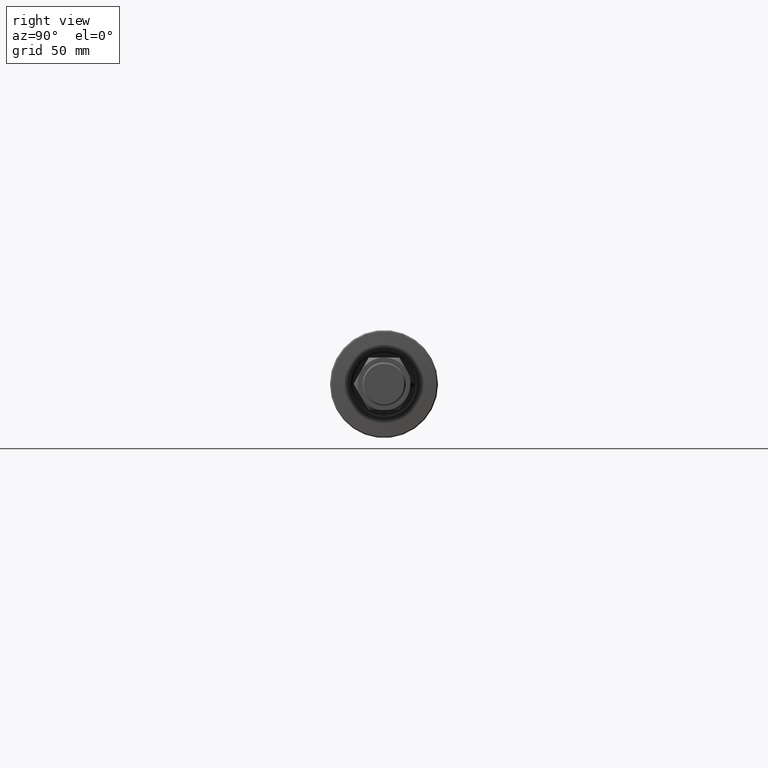
[diagram: clean part render]
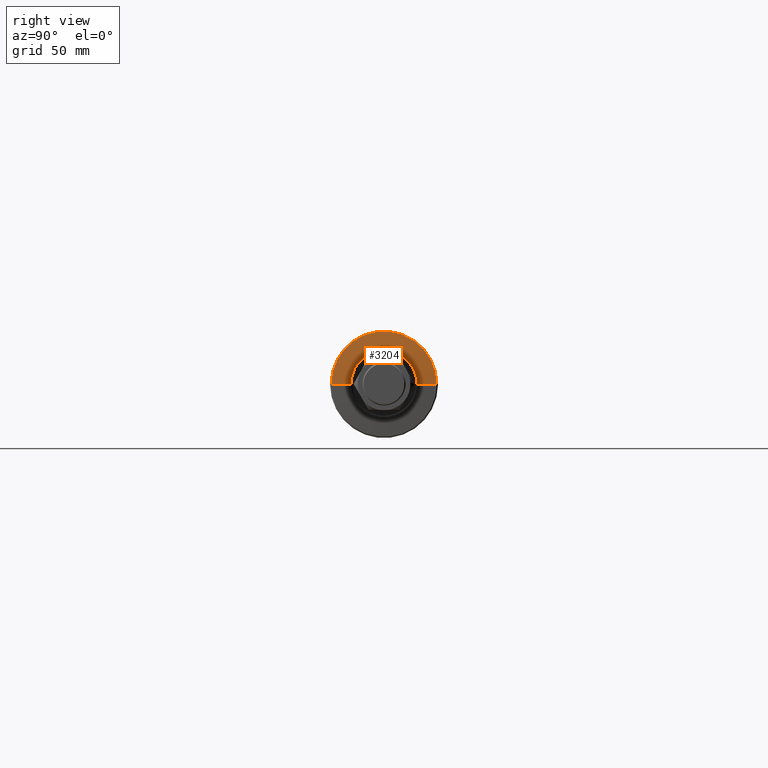
[diagram: same view with one face highlighted and labeled with its STEP entity id]
A machine part, right view. The second image highlights one B-rep face of the part: STEP entity #3204.
In plain terms, the highlighted conical surface has half-angle 87.138 deg.
Its self-contained STEP definition (entity closure, byte-faithful):
#46 = DIRECTION ( 'NONE',  ( -3.035766082959404132E-15, 1.000000000000000000, 0.000000000000000000 ) ) ;
#72 = ORIENTED_EDGE ( 'NONE', *, *, #3797, .T. ) ;
#234 = CARTESIAN_POINT ( 'NONE',  ( -0.6874688084724417392, 13.74937616943901908, 2.189017954870906259E-15 ) ) ;
#337 = CARTESIAN_POINT ( 'NONE',  ( -1.100000000000799227, 22.00000000000015277, 2.694222958124184698E-15 ) ) ;
#396 = DIRECTION ( 'NONE',  ( -3.035903820383676297E-15, 1.000000000000000000, 0.000000000000000000 ) ) ;
#433 = CARTESIAN_POINT ( 'NONE',  ( -1.100000000000665556, -21.99999999999997158, 0.000000000000000000 ) ) ;
#449 = AXIS2_PLACEMENT_3D ( 'NONE', #2101, #796, #2400 ) ;
#558 = VECTOR ( 'NONE', #1634, 1000.000000000000000 ) ;
#717 = VERTEX_POINT ( 'NONE', #234 ) ;
#796 = DIRECTION ( 'NONE',  ( -1.000000000000000000, -3.039592211588219332E-15, 0.000000000000000000 ) ) ;
#868 = EDGE_CURVE ( 'NONE', #3439, #717, #1158, .T. ) ;
#1068 = CARTESIAN_POINT ( 'NONE',  ( -0.6874688084723582504, -13.74937616943883789, 0.000000000000000000 ) ) ;
#1158 = CIRCLE ( 'NONE', #3512, 13.74937616943892849 ) ;
#1233 = CARTESIAN_POINT ( 'NONE',  ( -1.100000000000799227, 22.00000000000015277, 2.724839128102870063E-15 ) ) ;
#1244 = LINE ( 'NONE', #2201, #3647 ) ;
#1255 = EDGE_CURVE ( 'NONE', #3439, #2551, #1244, .T. ) ;
#1382 = DIRECTION ( 'NONE',  ( -1.000000000000000000, -3.039592211588226037E-15, 0.000000000000000000 ) ) ;
#1634 = DIRECTION ( 'NONE',  ( -0.04993761694392855749, 0.9987523388778428712, 1.223118854947682994E-16 ) ) ;
#1870 = VERTEX_POINT ( 'NONE', #1233 ) ;
#2101 = CARTESIAN_POINT ( 'NONE',  ( -1.100000000000732392, 8.869536993631697946E-14, 0.000000000000000000 ) ) ;
#2153 = EDGE_CURVE ( 'NONE', #717, #1870, #3187, .T. ) ;
#2201 = CARTESIAN_POINT ( 'NONE',  ( -1.100000000000665556, -21.99999999999997158, 0.000000000000000000 ) ) ;
#2366 = FACE_OUTER_BOUND ( 'NONE', #2590, .T. ) ;
#2400 = DIRECTION ( 'NONE',  ( 3.035766082959404132E-15, -1.000000000000000000, 0.000000000000000000 ) ) ;
#2496 = ORIENTED_EDGE ( 'NONE', *, *, #1255, .F. ) ;
#2551 = VERTEX_POINT ( 'NONE', #433 ) ;
#2590 = EDGE_LOOP ( 'NONE', ( #3190, #2761, #72, #2496 ) ) ;
#2624 = AXIS2_PLACEMENT_3D ( 'NONE', #2919, #3194, #46 ) ;
#2761 = ORIENTED_EDGE ( 'NONE', *, *, #2153, .T. ) ;
#2919 = CARTESIAN_POINT ( 'NONE',  ( -1.100000000000732392, 8.869536993631697946E-14, 0.000000000000000000 ) ) ;
#2984 = CARTESIAN_POINT ( 'NONE',  ( -0.6874688084723999948, 8.994929653312370924E-14, 0.000000000000000000 ) ) ;
#3083 = CONICAL_SURFACE ( 'NONE', #449, 22.00000000000006040, 1.520837931072920535 ) ;
#3187 = LINE ( 'NONE', #337, #558 ) ;
#3190 = ORIENTED_EDGE ( 'NONE', *, *, #868, .T. ) ;
#3194 = DIRECTION ( 'NONE',  ( 1.000000000000000000, 3.039592211588219332E-15, -0.000000000000000000 ) ) ;
#3204 = ADVANCED_FACE ( 'NONE', ( #2366 ), #3083, .T. ) ;
#3228 = CIRCLE ( 'NONE', #2624, 22.00000000000006040 ) ;
#3439 = VERTEX_POINT ( 'NONE', #1068 ) ;
#3446 = DIRECTION ( 'NONE',  ( -0.04993761694392248596, -0.9987523388778432043, 0.000000000000000000 ) ) ;
#3512 = AXIS2_PLACEMENT_3D ( 'NONE', #2984, #1382, #396 ) ;
#3647 = VECTOR ( 'NONE', #3446, 1000.000000000000114 ) ;
#3797 = EDGE_CURVE ( 'NONE', #1870, #2551, #3228, .T. ) ;